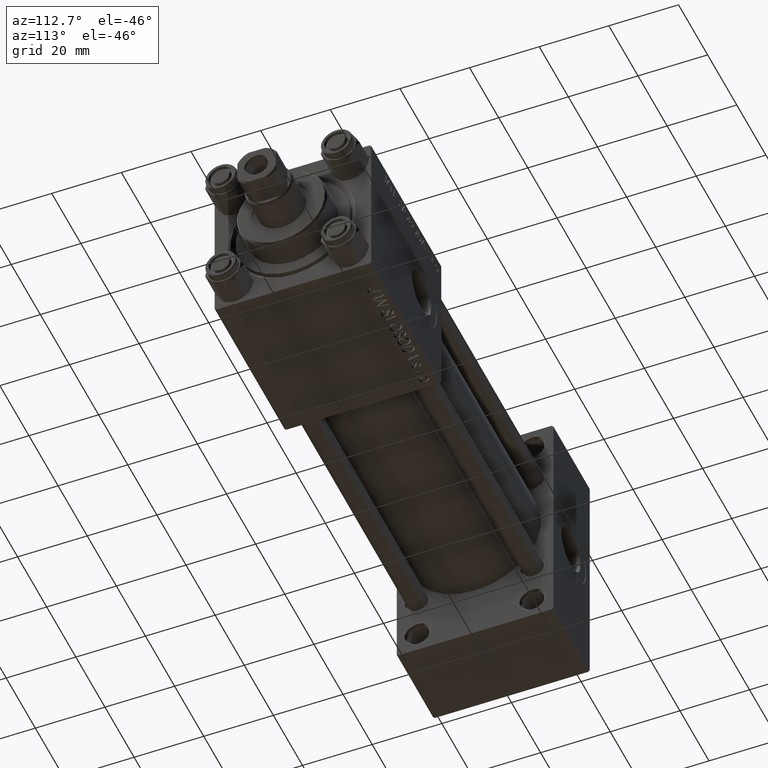
[diagram: clean part render]
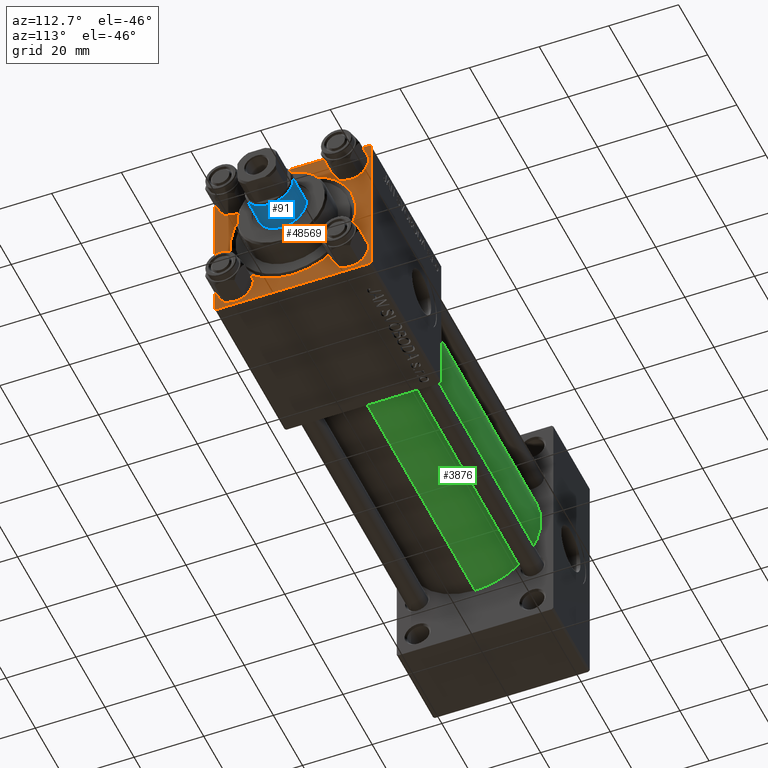
[diagram: same view with three faces highlighted in distinct colors, each labeled with its STEP entity id]
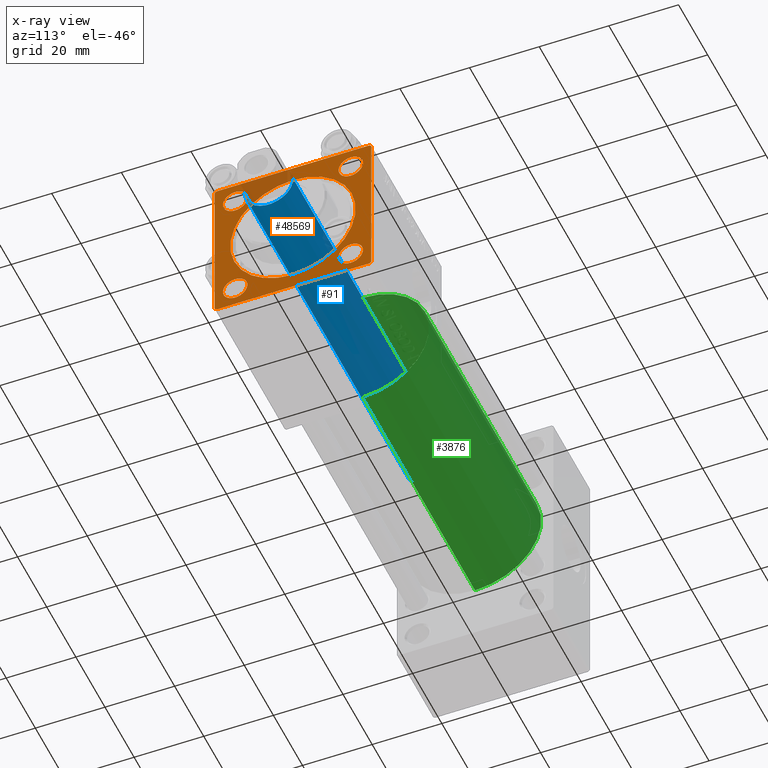
[diagram: x-ray of the same camera — body ghosted, the three highlighted faces saturated]
A machine part, auxiliary view with three faces highlighted in distinct colors.
The next image is the same camera in x-ray (body ghosted, the three faces saturated) — at least one of them is partly hidden behind the body in this view.
Their STEP definitions:

[orange] entity #48569 — the highlighted planar face has unit normal (-1, 0, 0).
#255 = DIRECTION ( 'NONE',  ( -1.000000000000000000, 0.000000000000000000, -0.000000000000000000 ) ) ;
#336 = ORIENTED_EDGE ( 'NONE', *, *, #20191, .F. ) ;
#707 = LINE ( 'NONE', #38861, #4244 ) ;
#1025 = VERTEX_POINT ( 'NONE', #8896 ) ;
#1214 = DIRECTION ( 'NONE',  ( -1.000000000000000000, 0.000000000000000000, -0.000000000000000000 ) ) ;
#1299 = EDGE_CURVE ( 'NONE', #38282, #26806, #42094, .T. ) ;
#1572 = CARTESIAN_POINT ( 'NONE',  ( 150.0000000000000284, 16.59999999999999787, -16.60000000000000497 ) ) ;
#2016 = LINE ( 'NONE', #47740, #16784 ) ;
#2019 = CARTESIAN_POINT ( 'NONE',  ( 150.0000000000000284, -16.59999999999999076, -20.10000000000003695 ) ) ;
#2660 = DIRECTION ( 'NONE',  ( -1.000000000000000000, 0.000000000000000000, -0.000000000000000000 ) ) ;
#2721 = CIRCLE ( 'NONE', #6730, 3.499999999999989342 ) ;
#2929 = DIRECTION ( 'NONE',  ( 0.000000000000000000, 0.000000000000000000, -1.000000000000000000 ) ) ;
#3694 = CARTESIAN_POINT ( 'NONE',  ( 150.0000000000000284, -22.49999999999999645, -21.99999999999996447 ) ) ;
#4244 = VECTOR ( 'NONE', #35568, 1000.000000000000000 ) ;
#4320 = AXIS2_PLACEMENT_3D ( 'NONE', #27110, #26173, #19531 ) ;
#4373 = ORIENTED_EDGE ( 'NONE', *, *, #13652, .T. ) ;
#4443 = VERTEX_POINT ( 'NONE', #43523 ) ;
#4754 = FACE_BOUND ( 'NONE', #16817, .T. ) ;
#4993 = DIRECTION ( 'NONE',  ( -0.000000000000000000, 0.000000000000000000, 1.000000000000000000 ) ) ;
#5043 = VERTEX_POINT ( 'NONE', #8166 ) ;
#5158 = EDGE_CURVE ( 'NONE', #47285, #48927, #5348, .T. ) ;
#5236 = CIRCLE ( 'NONE', #23052, 17.99999999999998934 ) ;
#5348 = LINE ( 'NONE', #9658, #9153 ) ;
#5669 = CARTESIAN_POINT ( 'NONE',  ( 150.0000000000000284, 0.000000000000000000, -17.99999999999998934 ) ) ;
#6730 = AXIS2_PLACEMENT_3D ( 'NONE', #27148, #19566, #8442 ) ;
#7015 = CARTESIAN_POINT ( 'NONE',  ( 150.0000000000000284, 22.50000000000000355, 22.50000000000000355 ) ) ;
#7610 = CIRCLE ( 'NONE', #16502, 3.499999999999947597 ) ;
#8062 = FACE_BOUND ( 'NONE', #40605, .T. ) ;
#8166 = CARTESIAN_POINT ( 'NONE',  ( 150.0000000000000284, 22.50000000000000355, 22.00000000000000355 ) ) ;
#8442 = DIRECTION ( 'NONE',  ( 0.000000000000000000, 0.000000000000000000, 1.000000000000000000 ) ) ;
#8588 = ORIENTED_EDGE ( 'NONE', *, *, #19915, .F. ) ;
#8896 = CARTESIAN_POINT ( 'NONE',  ( 150.0000000000000284, 22.50000000000000355, -21.99999999999998224 ) ) ;
#9062 = DIRECTION ( 'NONE',  ( -1.000000000000000000, 0.000000000000000000, -0.000000000000000000 ) ) ;
#9153 = VECTOR ( 'NONE', #13458, 1000.000000000000000 ) ;
#9335 = AXIS2_PLACEMENT_3D ( 'NONE', #43684, #9062, #16413 ) ;
#9658 = CARTESIAN_POINT ( 'NONE',  ( 150.0000000000000284, -21.99999999999998224, -22.50000000000000000 ) ) ;
#9988 = CIRCLE ( 'NONE', #39811, 3.499999999999947597 ) ;
#10539 = VECTOR ( 'NONE', #2929, 1000.000000000000000 ) ;
#10828 = AXIS2_PLACEMENT_3D ( 'NONE', #47452, #1214, #4993 ) ;
#11009 = EDGE_CURVE ( 'NONE', #17167, #11759, #37622, .T. ) ;
#11198 = VERTEX_POINT ( 'NONE', #43334 ) ;
#11759 = VERTEX_POINT ( 'NONE', #2019 ) ;
#12068 = CARTESIAN_POINT ( 'NONE',  ( 150.0000000000000284, 16.59999999999999787, -16.60000000000000497 ) ) ;
#12095 = CARTESIAN_POINT ( 'NONE',  ( 150.0000000000000284, -16.59999999999999076, -13.09999999999997655 ) ) ;
#12880 = CARTESIAN_POINT ( 'NONE',  ( 150.0000000000000284, -22.49999999999999645, 21.99999999999997868 ) ) ;
#13065 = AXIS2_PLACEMENT_3D ( 'NONE', #34119, #255, #30577 ) ;
#13226 = EDGE_LOOP ( 'NONE', ( #33208, #32948 ) ) ;
#13458 = DIRECTION ( 'NONE',  ( 0.000000000000000000, 0.7071067811865426878, -0.7071067811865524577 ) ) ;
#13652 = EDGE_CURVE ( 'NONE', #26806, #38282, #5236, .T. ) ;
#14149 = CARTESIAN_POINT ( 'NONE',  ( 150.0000000000000284, 16.59999999999999787, -13.10000000000005649 ) ) ;
#14818 = DIRECTION ( 'NONE',  ( 0.000000000000000000, -0.7071067811865378028, 0.7071067811865573427 ) ) ;
#15161 = VECTOR ( 'NONE', #37849, 1000.000000000000000 ) ;
#15654 = VERTEX_POINT ( 'NONE', #24299 ) ;
#15957 = AXIS2_PLACEMENT_3D ( 'NONE', #42148, #34577, #49988 ) ;
#16413 = DIRECTION ( 'NONE',  ( 0.000000000000000000, 0.000000000000000000, 1.000000000000000000 ) ) ;
#16464 = CIRCLE ( 'NONE', #4320, 3.499999999999989342 ) ;
#16496 = VECTOR ( 'NONE', #14818, 1000.000000000000000 ) ;
#16502 = AXIS2_PLACEMENT_3D ( 'NONE', #1572, #32394, #21955 ) ;
#16784 = VECTOR ( 'NONE', #32841, 1000.000000000000114 ) ;
#16817 = EDGE_LOOP ( 'NONE', ( #19317, #49780 ) ) ;
#16887 = VECTOR ( 'NONE', #20197, 1000.000000000000114 ) ;
#16892 = CARTESIAN_POINT ( 'NONE',  ( 150.0000000000000284, 16.59999999999999787, 13.10000000000001386 ) ) ;
#17167 = VERTEX_POINT ( 'NONE', #12095 ) ;
#17259 = LINE ( 'NONE', #35013, #40576 ) ;
#17341 = ORIENTED_EDGE ( 'NONE', *, *, #5158, .T. ) ;
#17631 = CARTESIAN_POINT ( 'NONE',  ( 150.0000000000000284, -22.49999999999999645, 22.49999999999999289 ) ) ;
#18466 = CIRCLE ( 'NONE', #20053, 3.500000000000031086 ) ;
#18607 = LINE ( 'NONE', #35004, #16496 ) ;
#18986 = EDGE_CURVE ( 'NONE', #15654, #43950, #41634, .T. ) ;
#19155 = CARTESIAN_POINT ( 'NONE',  ( 150.0000000000000284, -21.99999999999996803, 22.49999999999999289 ) ) ;
#19317 = ORIENTED_EDGE ( 'NONE', *, *, #31748, .T. ) ;
#19531 = DIRECTION ( 'NONE',  ( 0.000000000000000000, 0.000000000000000000, 1.000000000000000000 ) ) ;
#19566 = DIRECTION ( 'NONE',  ( -1.000000000000000000, 0.000000000000000000, -0.000000000000000000 ) ) ;
#19915 = EDGE_CURVE ( 'NONE', #24260, #48927, #707, .T. ) ;
#19924 = EDGE_LOOP ( 'NONE', ( #20734, #17341, #8588, #44265, #336, #35362, #35214, #48124 ) ) ;
#19942 = PLANE ( 'NONE',  #10828 ) ;
#20053 = AXIS2_PLACEMENT_3D ( 'NONE', #27716, #31001, #35304 ) ;
#20191 = EDGE_CURVE ( 'NONE', #5043, #1025, #17259, .T. ) ;
#20197 = DIRECTION ( 'NONE',  ( -0.000000000000000000, 0.7071067811865474617, 0.7071067811865474617 ) ) ;
#20734 = ORIENTED_EDGE ( 'NONE', *, *, #46195, .T. ) ;
#20804 = VERTEX_POINT ( 'NONE', #14149 ) ;
#20918 = VERTEX_POINT ( 'NONE', #16892 ) ;
#21955 = DIRECTION ( 'NONE',  ( 0.000000000000000000, 0.000000000000000000, 1.000000000000000000 ) ) ;
#22147 = CARTESIAN_POINT ( 'NONE',  ( 150.0000000000000284, 22.00000000000000355, -22.49999999999999645 ) ) ;
#22377 = EDGE_LOOP ( 'NONE', ( #34271, #4373 ) ) ;
#22399 = EDGE_CURVE ( 'NONE', #4443, #20918, #2721, .T. ) ;
#22799 = EDGE_CURVE ( 'NONE', #11198, #37816, #16464, .T. ) ;
#23052 = AXIS2_PLACEMENT_3D ( 'NONE', #36590, #41125, #44668 ) ;
#23583 = ORIENTED_EDGE ( 'NONE', *, *, #23915, .T. ) ;
#23691 = DIRECTION ( 'NONE',  ( -1.000000000000000000, 0.000000000000000000, -0.000000000000000000 ) ) ;
#23915 = EDGE_CURVE ( 'NONE', #20804, #26092, #7610, .T. ) ;
#24218 = FACE_BOUND ( 'NONE', #22377, .T. ) ;
#24260 = VERTEX_POINT ( 'NONE', #22147 ) ;
#24299 = CARTESIAN_POINT ( 'NONE',  ( 150.0000000000000284, 22.00000000000001776, 22.50000000000000355 ) ) ;
#25668 = VERTEX_POINT ( 'NONE', #12880 ) ;
#26032 = EDGE_CURVE ( 'NONE', #26092, #20804, #9988, .T. ) ;
#26092 = VERTEX_POINT ( 'NONE', #37297 ) ;
#26173 = DIRECTION ( 'NONE',  ( -1.000000000000000000, 0.000000000000000000, -0.000000000000000000 ) ) ;
#26307 = CARTESIAN_POINT ( 'NONE',  ( 150.0000000000000284, 2.204364238465234244E-15, 17.99999999999998934 ) ) ;
#26311 = CARTESIAN_POINT ( 'NONE',  ( 150.0000000000000284, -16.59999999999999076, 13.10000000000001741 ) ) ;
#26806 = VERTEX_POINT ( 'NONE', #26307 ) ;
#27079 = EDGE_CURVE ( 'NONE', #5043, #15654, #18607, .T. ) ;
#27110 = CARTESIAN_POINT ( 'NONE',  ( 150.0000000000000284, -16.59999999999999076, 16.60000000000000853 ) ) ;
#27148 = CARTESIAN_POINT ( 'NONE',  ( 150.0000000000000284, 16.59999999999999787, 16.60000000000000497 ) ) ;
#27716 = CARTESIAN_POINT ( 'NONE',  ( 150.0000000000000284, -16.59999999999999076, -16.60000000000000853 ) ) ;
#30384 = ORIENTED_EDGE ( 'NONE', *, *, #34442, .T. ) ;
#30577 = DIRECTION ( 'NONE',  ( 0.000000000000000000, 0.000000000000000000, 1.000000000000000000 ) ) ;
#31001 = DIRECTION ( 'NONE',  ( -1.000000000000000000, 0.000000000000000000, -0.000000000000000000 ) ) ;
#31748 = EDGE_CURVE ( 'NONE', #37816, #11198, #43259, .T. ) ;
#32394 = DIRECTION ( 'NONE',  ( -1.000000000000000000, 0.000000000000000000, -0.000000000000000000 ) ) ;
#32650 = DIRECTION ( 'NONE',  ( 0.000000000000000000, 0.000000000000000000, -1.000000000000000000 ) ) ;
#32841 = DIRECTION ( 'NONE',  ( -0.000000000000000000, -0.7071067811865474617, -0.7071067811865474617 ) ) ;
#32948 = ORIENTED_EDGE ( 'NONE', *, *, #11009, .T. ) ;
#33148 = ORIENTED_EDGE ( 'NONE', *, *, #22399, .T. ) ;
#33208 = ORIENTED_EDGE ( 'NONE', *, *, #41239, .T. ) ;
#34119 = CARTESIAN_POINT ( 'NONE',  ( 150.0000000000000284, 0.000000000000000000, 0.000000000000000000 ) ) ;
#34271 = ORIENTED_EDGE ( 'NONE', *, *, #1299, .T. ) ;
#34442 = EDGE_CURVE ( 'NONE', #20918, #4443, #48165, .T. ) ;
#34577 = DIRECTION ( 'NONE',  ( -1.000000000000000000, 0.000000000000000000, -0.000000000000000000 ) ) ;
#35004 = CARTESIAN_POINT ( 'NONE',  ( 150.0000000000000284, 22.00000000000001776, 22.50000000000000355 ) ) ;
#35013 = CARTESIAN_POINT ( 'NONE',  ( 150.0000000000000284, 22.50000000000000355, 22.50000000000000355 ) ) ;
#35214 = ORIENTED_EDGE ( 'NONE', *, *, #18986, .T. ) ;
#35304 = DIRECTION ( 'NONE',  ( 0.000000000000000000, 0.000000000000000000, 1.000000000000000000 ) ) ;
#35362 = ORIENTED_EDGE ( 'NONE', *, *, #27079, .T. ) ;
#35568 = DIRECTION ( 'NONE',  ( 0.000000000000000000, -1.000000000000000000, -7.709882115452476934E-17 ) ) ;
#35977 = EDGE_CURVE ( 'NONE', #43950, #25668, #2016, .T. ) ;
#36590 = CARTESIAN_POINT ( 'NONE',  ( 150.0000000000000284, 0.000000000000000000, 0.000000000000000000 ) ) ;
#37297 = CARTESIAN_POINT ( 'NONE',  ( 150.0000000000000284, 16.59999999999999787, -20.09999999999995168 ) ) ;
#37622 = CIRCLE ( 'NONE', #44866, 3.500000000000031086 ) ;
#37816 = VERTEX_POINT ( 'NONE', #26311 ) ;
#37849 = DIRECTION ( 'NONE',  ( 0.000000000000000000, -1.000000000000000000, -2.312964634635742957E-16 ) ) ;
#38282 = VERTEX_POINT ( 'NONE', #5669 ) ;
#38403 = CARTESIAN_POINT ( 'NONE',  ( 150.0000000000000284, 22.50000000000000355, -21.99999999999999645 ) ) ;
#38636 = FACE_OUTER_BOUND ( 'NONE', #19924, .T. ) ;
#38861 = CARTESIAN_POINT ( 'NONE',  ( 150.0000000000000284, 22.50000000000000355, -22.49999999999999645 ) ) ;
#39099 = DIRECTION ( 'NONE',  ( 0.000000000000000000, 0.000000000000000000, 1.000000000000000000 ) ) ;
#39811 = AXIS2_PLACEMENT_3D ( 'NONE', #12068, #23691, #39099 ) ;
#40576 = VECTOR ( 'NONE', #32650, 1000.000000000000000 ) ;
#40605 = EDGE_LOOP ( 'NONE', ( #30384, #33148 ) ) ;
#41033 = ORIENTED_EDGE ( 'NONE', *, *, #26032, .T. ) ;
#41125 = DIRECTION ( 'NONE',  ( -1.000000000000000000, 0.000000000000000000, -0.000000000000000000 ) ) ;
#41239 = EDGE_CURVE ( 'NONE', #11759, #17167, #18466, .T. ) ;
#41634 = LINE ( 'NONE', #7015, #15161 ) ;
#42094 = CIRCLE ( 'NONE', #13065, 17.99999999999998934 ) ;
#42148 = CARTESIAN_POINT ( 'NONE',  ( 150.0000000000000284, 16.59999999999999787, 16.60000000000000497 ) ) ;
#42683 = FACE_BOUND ( 'NONE', #44125, .T. ) ;
#42769 = EDGE_CURVE ( 'NONE', #24260, #1025, #46964, .T. ) ;
#43123 = CARTESIAN_POINT ( 'NONE',  ( 150.0000000000000284, -21.99999999999996803, -22.50000000000000000 ) ) ;
#43259 = CIRCLE ( 'NONE', #9335, 3.499999999999989342 ) ;
#43334 = CARTESIAN_POINT ( 'NONE',  ( 150.0000000000000284, -16.59999999999999076, 20.09999999999999787 ) ) ;
#43523 = CARTESIAN_POINT ( 'NONE',  ( 150.0000000000000284, 16.59999999999999787, 20.09999999999999432 ) ) ;
#43684 = CARTESIAN_POINT ( 'NONE',  ( 150.0000000000000284, -16.59999999999999076, 16.60000000000000853 ) ) ;
#43950 = VERTEX_POINT ( 'NONE', #19155 ) ;
#44125 = EDGE_LOOP ( 'NONE', ( #41033, #23583 ) ) ;
#44265 = ORIENTED_EDGE ( 'NONE', *, *, #42769, .T. ) ;
#44668 = DIRECTION ( 'NONE',  ( 0.000000000000000000, 0.000000000000000000, 1.000000000000000000 ) ) ;
#44866 = AXIS2_PLACEMENT_3D ( 'NONE', #48649, #2660, #46109 ) ;
#46109 = DIRECTION ( 'NONE',  ( 0.000000000000000000, 0.000000000000000000, 1.000000000000000000 ) ) ;
#46195 = EDGE_CURVE ( 'NONE', #25668, #47285, #48914, .T. ) ;
#46715 = FACE_BOUND ( 'NONE', #13226, .T. ) ;
#46964 = LINE ( 'NONE', #38403, #16887 ) ;
#47285 = VERTEX_POINT ( 'NONE', #3694 ) ;
#47452 = CARTESIAN_POINT ( 'NONE',  ( 150.0000000000000284, 0.000000000000000000, 0.000000000000000000 ) ) ;
#47740 = CARTESIAN_POINT ( 'NONE',  ( 150.0000000000000284, -22.49999999999999645, 21.99999999999997868 ) ) ;
#48124 = ORIENTED_EDGE ( 'NONE', *, *, #35977, .T. ) ;
#48165 = CIRCLE ( 'NONE', #15957, 3.499999999999989342 ) ;
#48569 = ADVANCED_FACE ( 'NONE', ( #46715, #42683, #8062, #4754, #24218, #38636 ), #19942, .F. ) ;
#48649 = CARTESIAN_POINT ( 'NONE',  ( 150.0000000000000284, -16.59999999999999076, -16.60000000000000853 ) ) ;
#48914 = LINE ( 'NONE', #17631, #10539 ) ;
#48927 = VERTEX_POINT ( 'NONE', #43123 ) ;
#49780 = ORIENTED_EDGE ( 'NONE', *, *, #22799, .T. ) ;
#49988 = DIRECTION ( 'NONE',  ( 0.000000000000000000, 0.000000000000000000, 1.000000000000000000 ) ) ;

[blue] entity #91 — the highlighted cylindrical surface (edge-blend (fillet) strip) has radius 7 mm, axis along (-1, 0, 0).
#91 = ADVANCED_FACE ( 'NONE', ( #12201 ), #4354, .T. ) ;
#927 = DIRECTION ( 'NONE',  ( 0.000000000000000000, 0.000000000000000000, 1.000000000000000000 ) ) ;
#2220 = AXIS2_PLACEMENT_3D ( 'NONE', #32184, #47348, #20823 ) ;
#3462 = EDGE_LOOP ( 'NONE', ( #33129, #26804, #8741, #49975 ) ) ;
#4354 = CYLINDRICAL_SURFACE ( 'NONE', #10596, 7.000000000000000000 ) ;
#8741 = ORIENTED_EDGE ( 'NONE', *, *, #43952, .T. ) ;
#8746 = VERTEX_POINT ( 'NONE', #49263 ) ;
#9458 = CARTESIAN_POINT ( 'NONE',  ( 7.000000000000000000, 8.572527594031473190E-16, 141.4999999999999716 ) ) ;
#10596 = AXIS2_PLACEMENT_3D ( 'NONE', #24319, #16009, #19535 ) ;
#12201 = FACE_OUTER_BOUND ( 'NONE', #3462, .T. ) ;
#12806 = VECTOR ( 'NONE', #48786, 1000.000000000000000 ) ;
#16009 = DIRECTION ( 'NONE',  ( -0.000000000000000000, -0.000000000000000000, -1.000000000000000000 ) ) ;
#19199 = VERTEX_POINT ( 'NONE', #25667 ) ;
#19293 = EDGE_CURVE ( 'NONE', #19199, #32306, #45799, .T. ) ;
#19535 = DIRECTION ( 'NONE',  ( -1.000000000000000000, 0.000000000000000000, 0.000000000000000000 ) ) ;
#20823 = DIRECTION ( 'NONE',  ( 1.000000000000000000, 0.000000000000000000, 0.000000000000000000 ) ) ;
#21621 = CARTESIAN_POINT ( 'NONE',  ( -7.000000000000000000, 0.000000000000000000, 30.00000000000000000 ) ) ;
#23435 = DIRECTION ( 'NONE',  ( 1.000000000000000000, 0.000000000000000000, 0.000000000000000000 ) ) ;
#24319 = CARTESIAN_POINT ( 'NONE',  ( 0.000000000000000000, 0.000000000000000000, 142.0000000000000284 ) ) ;
#25144 = DIRECTION ( 'NONE',  ( -0.000000000000000000, -0.000000000000000000, -1.000000000000000000 ) ) ;
#25573 = LINE ( 'NONE', #44521, #12806 ) ;
#25667 = CARTESIAN_POINT ( 'NONE',  ( -7.000000000000000000, 0.000000000000000000, 141.4999999999999716 ) ) ;
#25877 = CARTESIAN_POINT ( 'NONE',  ( 7.000000000000000000, 8.572527594031473190E-16, 142.0000000000000284 ) ) ;
#26804 = ORIENTED_EDGE ( 'NONE', *, *, #38320, .T. ) ;
#32184 = CARTESIAN_POINT ( 'NONE',  ( 0.000000000000000000, 0.000000000000000000, 141.4999999999999716 ) ) ;
#32306 = VERTEX_POINT ( 'NONE', #9458 ) ;
#33129 = ORIENTED_EDGE ( 'NONE', *, *, #19293, .T. ) ;
#34689 = CIRCLE ( 'NONE', #40350, 7.000000000000000000 ) ;
#36769 = LINE ( 'NONE', #25877, #46699 ) ;
#37698 = EDGE_CURVE ( 'NONE', #19199, #40057, #25573, .T. ) ;
#38320 = EDGE_CURVE ( 'NONE', #32306, #8746, #36769, .T. ) ;
#40057 = VERTEX_POINT ( 'NONE', #21621 ) ;
#40350 = AXIS2_PLACEMENT_3D ( 'NONE', #46164, #927, #23435 ) ;
#43952 = EDGE_CURVE ( 'NONE', #8746, #40057, #34689, .T. ) ;
#44521 = CARTESIAN_POINT ( 'NONE',  ( -7.000000000000000000, 0.000000000000000000, 142.0000000000000284 ) ) ;
#45799 = CIRCLE ( 'NONE', #2220, 7.000000000000000000 ) ;
#46164 = CARTESIAN_POINT ( 'NONE',  ( 0.000000000000000000, 0.000000000000000000, 30.00000000000000000 ) ) ;
#46699 = VECTOR ( 'NONE', #25144, 1000.000000000000000 ) ;
#47348 = DIRECTION ( 'NONE',  ( 0.000000000000000000, 0.000000000000000000, -1.000000000000000000 ) ) ;
#48786 = DIRECTION ( 'NONE',  ( -0.000000000000000000, -0.000000000000000000, -1.000000000000000000 ) ) ;
#49263 = CARTESIAN_POINT ( 'NONE',  ( 7.000000000000000000, 8.572527594031473190E-16, 30.00000000000000000 ) ) ;
#49975 = ORIENTED_EDGE ( 'NONE', *, *, #37698, .F. ) ;

[green] entity #3876 — the highlighted cylindrical surface (partial cylindrical patch) has radius 19 mm, axis along (-1, -0, -0).
#65 = CARTESIAN_POINT ( 'NONE',  ( 102.0000000000000142, -2.602085213965210642E-15, 19.00000000000000000 ) ) ;
#904 = VERTEX_POINT ( 'NONE', #34688 ) ;
#3876 = ADVANCED_FACE ( 'NONE', ( #41088 ), #34243, .T. ) ;
#5394 = VERTEX_POINT ( 'NONE', #11633 ) ;
#6457 = DIRECTION ( 'NONE',  ( 0.000000000000000000, 0.000000000000000000, 1.000000000000000000 ) ) ;
#6800 = CARTESIAN_POINT ( 'NONE',  ( 102.0000000000000142, -2.752562955852396712E-16, -19.00000000000000000 ) ) ;
#7194 = CIRCLE ( 'NONE', #35443, 19.00000000000000000 ) ;
#7379 = DIRECTION ( 'NONE',  ( 0.000000000000000000, 0.000000000000000000, 1.000000000000000000 ) ) ;
#7637 = CARTESIAN_POINT ( 'NONE',  ( 24.99999999999999289, -2.602085213965210642E-15, 0.000000000000000000 ) ) ;
#11492 = AXIS2_PLACEMENT_3D ( 'NONE', #33991, #18596, #6457 ) ;
#11633 = CARTESIAN_POINT ( 'NONE',  ( 24.99999999999999289, -2.602085213965210642E-15, 19.00000000000000000 ) ) ;
#11821 = VECTOR ( 'NONE', #28192, 1000.000000000000000 ) ;
#13094 = EDGE_CURVE ( 'NONE', #50008, #5394, #44609, .T. ) ;
#13912 = DIRECTION ( 'NONE',  ( -1.000000000000000000, -0.000000000000000000, -0.000000000000000000 ) ) ;
#15005 = VERTEX_POINT ( 'NONE', #6800 ) ;
#15159 = AXIS2_PLACEMENT_3D ( 'NONE', #7637, #33659, #7379 ) ;
#18596 = DIRECTION ( 'NONE',  ( -1.000000000000000000, -0.000000000000000000, -0.000000000000000000 ) ) ;
#19311 = ORIENTED_EDGE ( 'NONE', *, *, #13094, .F. ) ;
#19717 = VECTOR ( 'NONE', #13912, 1000.000000000000000 ) ;
#20027 = DIRECTION ( 'NONE',  ( 0.000000000000000000, 0.000000000000000000, -1.000000000000000000 ) ) ;
#21436 = CARTESIAN_POINT ( 'NONE',  ( 102.0000000000000142, -2.602085213965210642E-15, 0.000000000000000000 ) ) ;
#21499 = CARTESIAN_POINT ( 'NONE',  ( 102.0000000000000142, -2.752562955852396712E-16, -19.00000000000000000 ) ) ;
#28192 = DIRECTION ( 'NONE',  ( -1.000000000000000000, -0.000000000000000000, -0.000000000000000000 ) ) ;
#32309 = DIRECTION ( 'NONE',  ( 1.000000000000000000, 0.000000000000000000, 0.000000000000000000 ) ) ;
#33659 = DIRECTION ( 'NONE',  ( 1.000000000000000000, -0.000000000000000000, 0.000000000000000000 ) ) ;
#33991 = CARTESIAN_POINT ( 'NONE',  ( 102.0000000000000142, -2.602085213965210642E-15, 0.000000000000000000 ) ) ;
#34243 = CYLINDRICAL_SURFACE ( 'NONE', #11492, 19.00000000000000000 ) ;
#34688 = CARTESIAN_POINT ( 'NONE',  ( 24.99999999999999289, -2.752562955852396712E-16, -19.00000000000000000 ) ) ;
#35443 = AXIS2_PLACEMENT_3D ( 'NONE', #21436, #32309, #20027 ) ;
#36034 = CARTESIAN_POINT ( 'NONE',  ( 102.0000000000000142, -2.602085213965210642E-15, 19.00000000000000000 ) ) ;
#38865 = ORIENTED_EDGE ( 'NONE', *, *, #43669, .F. ) ;
#39514 = EDGE_CURVE ( 'NONE', #904, #5394, #44180, .T. ) ;
#40697 = LINE ( 'NONE', #21499, #19717 ) ;
#41088 = FACE_OUTER_BOUND ( 'NONE', #43140, .T. ) ;
#42257 = ORIENTED_EDGE ( 'NONE', *, *, #39514, .T. ) ;
#43140 = EDGE_LOOP ( 'NONE', ( #38865, #45088, #42257, #19311 ) ) ;
#43669 = EDGE_CURVE ( 'NONE', #15005, #50008, #7194, .T. ) ;
#44180 = CIRCLE ( 'NONE', #15159, 19.00000000000000000 ) ;
#44609 = LINE ( 'NONE', #36034, #11821 ) ;
#45088 = ORIENTED_EDGE ( 'NONE', *, *, #49257, .T. ) ;
#49257 = EDGE_CURVE ( 'NONE', #15005, #904, #40697, .T. ) ;
#50008 = VERTEX_POINT ( 'NONE', #65 ) ;